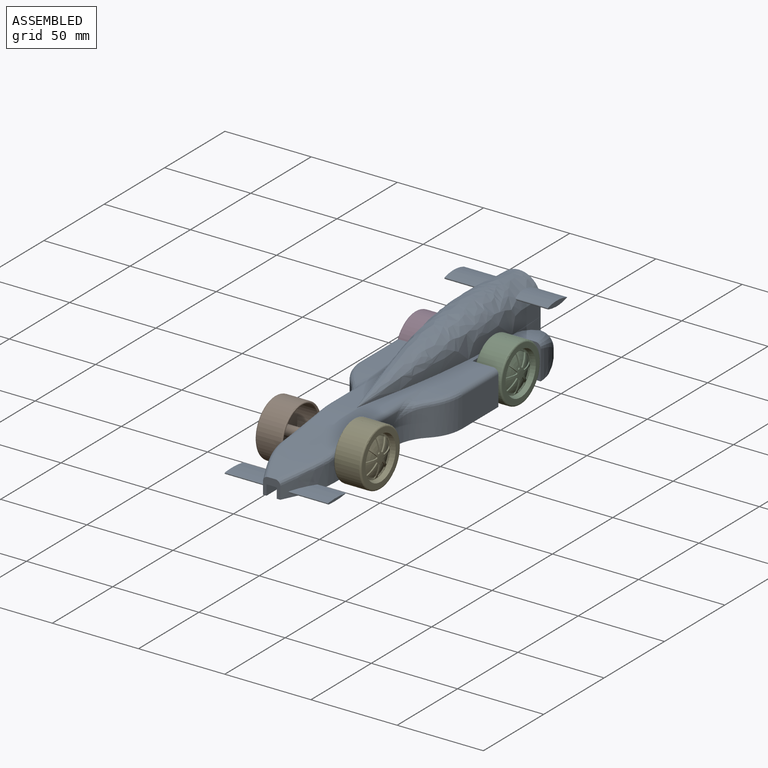
[diagram: assembled view]
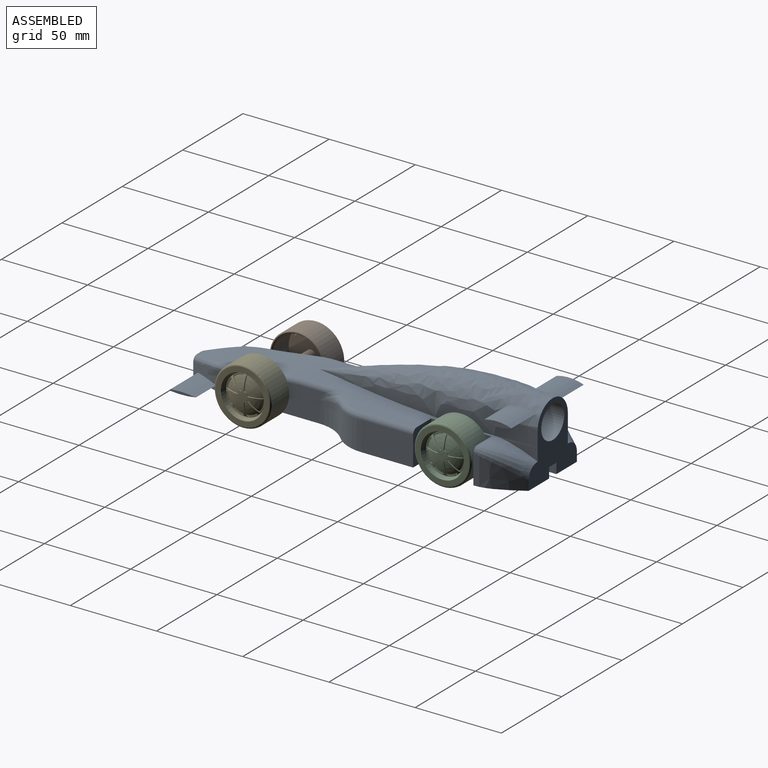
[diagram: assembled view, second angle]
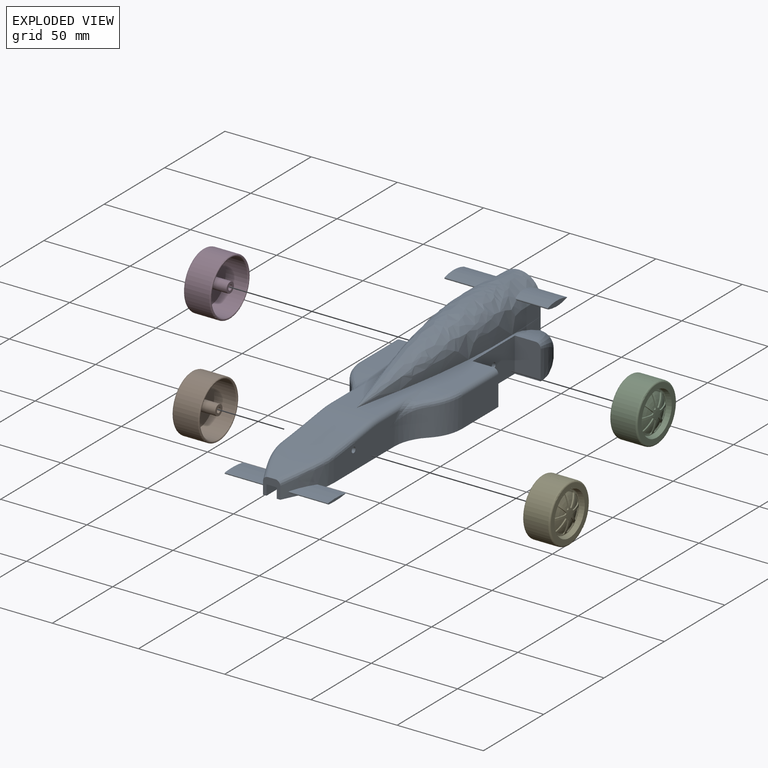
[diagram: exploded view]
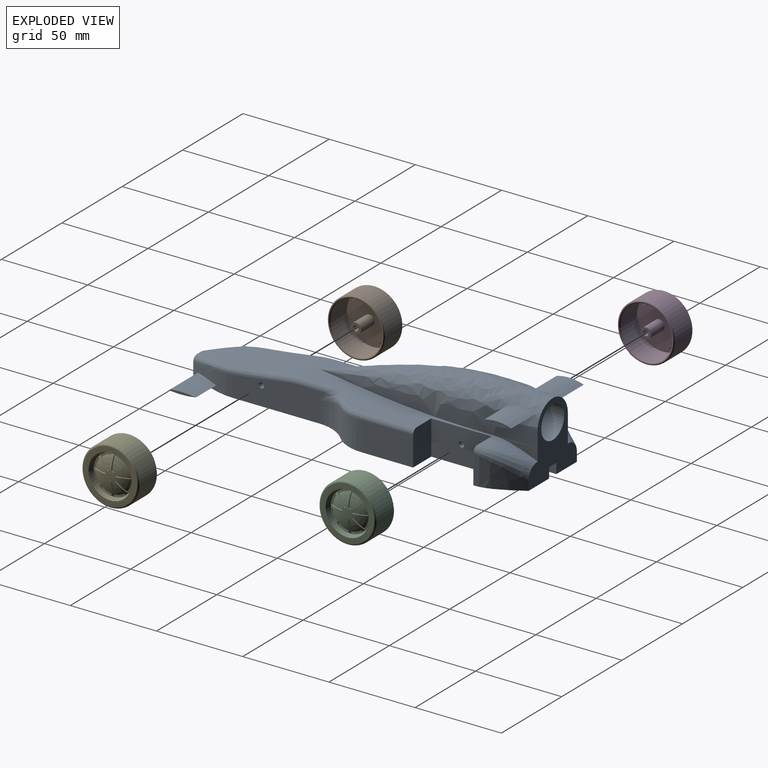
[diagram: exploded view, second angle]
ASSEMBLY  parts=5 mates=4
PART A: 87 faces, bbox 60.8x211.1x45.8 mm
  f0: bspline ~30x15mm, area 313.1mm2, adj f3,f5,f13,f41,f42,f83,f84,f85
  f1: bspline ~30x15mm, area 313.1mm2, adj f5,f11,f12,f47,f48,f79,f80,f81
  f2: bspline ~135x31.11mm, area 5800.7mm2, adj f4,f6,f14,f15,f69,f70,f71,f73
  f3: plane 205x27mm, normal (0,0,-1), area 3341.7mm2, adj f0,f4,f5,f10,f13,f21,f23,f26
  f4: plane 41.59x40.59mm, normal (0,1,0), area 803.1mm2, adj f2,f3,f11,f14,f15,f16,f21,f24
  f5: plane 10.81x10.81mm, normal (0,-1,0), area 60.6mm2, adj f0,f1,f3,f11,f36,f38,f39,f40
  f6: plane 111.01x54mm, normal (0,0,1), area 1779.8mm2, adj f2,f9,f10,f18,f20,f28,f30,f32
  f7: cylinder r=24.17mm len=17.5mm, axis (0,0,-1), area 273mm2, adj f8,f11,f12,f58
  f8: cylinder r=24.17mm len=17.5mm, axis (0,0,-1), area 323.2mm2, adj f7,f11,f31,f57
  f9: plane 35x20mm, normal (-1,0,0), area 692mm2, adj f6,f11,f19,f30,f78
  f10: plane 35x20mm, normal (1,0,0), area 692mm2, adj f3,f6,f23,f28,f78
  f11: plane 205x27mm, normal (0,0,-1), area 3341.7mm2, adj f1,f4,f5,f7,f8,f9,f12,f16
  f12: plane 54.07x17.63mm, normal (-1,0,0), area 763.6mm2, adj f1,f7,f11,f49,f50,f51,f52,f65
  f13: plane 53.44x17mm, normal (1,0,0), area 763.6mm2, adj f0,f3,f27,f43,f44,f45,f46,f68
  f14: extruded ~25x7.51mm, area 70.2mm2, adj f2,f4,f20,f59
  f15: extruded ~25x7.51mm, area 69.5mm2, adj f2,f4,f18,f61
  f16: bspline ~25x20mm, area 309.3mm2, adj f4,f11,f19,f61,f62
  f17: bspline ~25x15mm, area 118.1mm2, adj f18,f19,f62
  f18: extruded ~24.39x7.22mm, area 46.3mm2, adj f6,f15,f17,f61
  f19: plane 20.1x15.1mm, normal (0,-1,0), area 298.1mm2, adj f9,f11,f16,f17,f62
  f20: extruded ~24.4x7.23mm, area 46.4mm2, adj f6,f14,f22,f59
  f21: bspline ~25x20mm, area 309.3mm2, adj f3,f4,f23,f59,f60
  f22: bspline ~25x15mm, area 118.1mm2, adj f20,f23,f60
  f23: plane 20.1x15.1mm, normal (0,-1,0), area 298.1mm2, adj f3,f10,f21,f22,f60
  f24: cylinder r=9.5mm len=52mm, axis (0,1,0), area 3103.9mm2, adj f4,f25
  f25: plane 19x19mm, normal (0,1,0), area 283.5mm2, adj f24
  f26: cylinder r=24.17mm len=17.5mm, axis (0,0,-1), area 323.2mm2, adj f3,f27,f29,f54
  f27: cylinder r=24.17mm len=17.5mm, axis (0,0,-1), area 273mm2, adj f3,f13,f26,f55
  f28: plane 20x15mm, normal (0,1,0), area 298.1mm2, adj f3,f6,f10,f29,f53
  f29: plane 30x17mm, normal (1,0,0), area 510mm2, adj f3,f26,f28,f53
  f30: plane 20x15mm, normal (0,1,0), area 298.1mm2, adj f6,f9,f11,f31,f56
  f31: plane 30x17mm, normal (-1,0,0), area 510mm2, adj f8,f11,f30,f56
  f32: cylinder r=125mm len=18.4mm, axis (-1,0,0), area 148.7mm2, adj f6,f57,f58,f63
  f33: cylinder r=125mm len=18.4mm, axis (1,0,0), area 148.7mm2, adj f6,f54,f55,f66
  f34: plane 24x12.97mm, normal (0,-0.14,0.99), area 314.5mm2, adj f35,f37,f44,f50
  f35: cylinder r=60mm len=24mm, axis (1,0,0), area 204.3mm2, adj f6,f34,f45,f51
  f36: bspline ~30x30mm, area 311.6mm2, adj f5,f37,f41,f47
  f37: bspline ~27.9x24.13mm, area 579.4mm2, adj f34,f36,f42,f43,f48,f49
  f38: plane 205x6mm, normal (-1,0,0), area 1230mm2, adj f3,f4,f5,f40
  f39: plane 205x6mm, normal (1,0,0), area 1230mm2, adj f4,f5,f11,f40
  f40: plane 205x6mm, normal (0,0,-1), area 1230mm2, adj f4,f5,f38,f39
  f41: bspline ~30.02x13.66mm, area 116.6mm2, adj f0,f5,f36,f42
  f42: bspline ~10.45x4.23mm, area 30.2mm2, adj f0,f37,f41,f43
  f43: bspline ~54.83x11.22mm, area 86.3mm2, adj f13,f37,f42,f44
  f44: cylinder r=3mm len=13.4mm, axis (0,0.99,0.14), area 61.7mm2, adj f13,f34,f43,f45
  f45: torus R=57mm, axis (1,0,0), area 39.4mm2, adj f13,f35,f44,f46
  f46: cylinder r=3mm len=45.74mm, axis (0,1,0), area 117.1mm2, adj f6,f13,f45,f66,f67
  f47: bspline ~30.02x13.66mm, area 116.6mm2, adj f1,f5,f36,f48
  f48: bspline ~10.45x4.23mm, area 30.2mm2, adj f1,f37,f47,f49
  f49: bspline ~54.83x11.22mm, area 86.3mm2, adj f12,f37,f48,f50
  f50: cylinder r=3mm len=13.4mm, axis (0,-0.99,-0.14), area 61.7mm2, adj f12,f34,f49,f51
  f51: torus R=57mm, axis (1,0,0), area 39.4mm2, adj f12,f35,f50,f52
  f52: cylinder r=3mm len=45.74mm, axis (0,-1,0), area 117.1mm2, adj f6,f12,f51,f63,f64
  f53: cylinder r=3mm len=30mm, axis (0,-1,0), area 141.4mm2, adj f6,f28,f29,f54
  f54: bspline ~20.89x11.38mm, area 87.2mm2, adj f26,f33,f53,f55
  f55: bspline ~23.31x12.56mm, area 43.8mm2, adj f27,f33,f54,f67,f68
  f56: cylinder r=3mm len=30mm, axis (0,1,0), area 141.4mm2, adj f6,f30,f31,f57
  f57: bspline ~20.89x11.38mm, area 87.2mm2, adj f8,f32,f56,f58
  f58: bspline ~23.31x12.56mm, area 43.8mm2, adj f7,f32,f57,f64,f65
  f59: bspline ~9.3x9.24mm, area 37.1mm2, adj f4,f14,f20,f21,f60
  f60: bspline ~22.81x15mm, area 205mm2, adj f21,f22,f23,f59
  f61: bspline ~9.3x9.24mm, area 37mm2, adj f4,f15,f16,f18,f62
  f62: bspline ~22.81x15mm, area 205mm2, adj f16,f17,f19,f61
  f63: bspline ~19.88x6.01mm, area 32.3mm2, adj f32,f52,f64
  f64: bspline ~15.77x5.7mm, area 45.7mm2, adj f52,f58,f63,f65
  f65: bspline ~8.87x6.86mm, area 8.4mm2, adj f12,f58,f64
  f66: bspline ~28.18x8.28mm, area 32.3mm2, adj f33,f46,f67
  f67: bspline ~15.77x5.7mm, area 45.7mm2, adj f46,f55,f66,f68
  f68: bspline ~8.87x6.86mm, area 8.4mm2, adj f13,f55,f67
  f69: cylinder r=25.3mm len=19.6mm, axis (1,0,0), area 301.4mm2, adj f2,f70,f71,f72
  f70: cylinder r=25.3mm len=19.6mm, axis (1,0,0), area 306.3mm2, adj f2,f69,f71,f72
  f71: cylinder r=0.52mm len=18.95mm, axis (1,0,0), area 25mm2, adj f2,f69,f70,f72
  f72: plane 16x3mm, normal (1,0,0), area 34mm2, adj f69,f70,f71
  f73: cylinder r=0.52mm len=18.95mm, axis (-1,0,0), area 25mm2, adj f2,f74,f75,f76
  f74: cylinder r=25.3mm len=19.6mm, axis (-1,0,0), area 306.3mm2, adj f2,f73,f75,f76
  f75: cylinder r=25.3mm len=19.6mm, axis (-1,0,0), area 301.4mm2, adj f2,f73,f74,f76
  f76: plane 16x3mm, normal (-1,0,0), area 34mm2, adj f73,f74,f75
  f77: cylinder r=1.6mm len=30mm, axis (-1,0,0), area 301.6mm2, adj f12,f13
  f78: cylinder r=1.6mm len=30mm, axis (-1,0,0), area 301.6mm2, adj f9,f10
  f79: cylinder r=0.45mm len=22.81mm, axis (-1,0,0), area 29.9mm2, adj f1,f80,f81,f82
  f80: cylinder r=53.29mm len=22.81mm, axis (-1,0,0), area 289.9mm2, adj f1,f79,f81,f82
  f81: cylinder r=53.29mm len=22.81mm, axis (-1,0,0), area 289.9mm2, adj f1,f79,f80,f82
  f82: plane 15x1.5mm, normal (-1,0,0), area 16.6mm2, adj f79,f80,f81
  f83: cylinder r=0.45mm len=22.81mm, axis (1,0,0), area 29.9mm2, adj f0,f84,f85,f86
  f84: cylinder r=53.29mm len=22.81mm, axis (1,0,0), area 289.9mm2, adj f0,f83,f85,f86
  f85: cylinder r=53.29mm len=22.81mm, axis (1,0,0), area 289.9mm2, adj f0,f83,f84,f86
  f86: plane 15x1.5mm, normal (1,0,0), area 16.6mm2, adj f83,f84,f85
PART B: 90 faces, bbox 16.1x36.1x36.1 mm
  f0: cylinder r=16.5mm len=16.5mm, axis (1,0,0), area 362.7mm2, adj f1,f3,f86,f88
  f1: torus R=15.5mm, axis (1,0,0), area 159.3mm2, adj f0,f2,f7,f84,f85,f86,f87,f88
  f2: cylinder r=16.5mm len=33mm, axis (1,0,0), area 1088.4mm2, adj f1,f3,f84,f87
  f3: torus R=15.81mm, axis (1,0,0), area 215.3mm2, adj f0,f2,f8,f84,f85,f86,f87,f88
  f4: torus R=13.24mm, axis (1,0,0), area 10.3mm2, adj f7,f15
  f5: cylinder r=1.55mm len=13mm, axis (1,0,0), area 126.6mm2, adj f6,f13
  f6: cone r=1.55mm half-angle=51.1deg, axis (-1,0,0), area 9.7mm2, adj f5
  f7: plane 31x31mm, normal (1,0,0), area 203.7mm2, adj f1,f4
  f8: cylinder r=15.12mm len=30.24mm, axis (1,0,0), area 1282.5mm2, adj f3,f9
  f9: plane 30.24x30.24mm, normal (-1,0,0), area 177.4mm2, adj f8,f10
  f10: cone r=13.12mm half-angle=16.7deg, axis (1,0,0), area 249.3mm2, adj f9,f11
  f11: plane 24.44x24.44mm, normal (-1,0,0), area 439.9mm2, adj f10,f12
  f12: cylinder r=3.05mm len=11.19mm, axis (1,0,0), area 214.4mm2, adj f11,f13
  f13: plane 6.1x6.1mm, normal (-1,0,0), area 21.7mm2, adj f5,f12
  f14: plane 26.24x26.24mm, normal (1,0,0), area 49.9mm2, adj f15,f17
  f15: cylinder r=13.12mm len=26.24mm, axis (1,0,0), area 0.6mm2, adj f4,f14
  f16: plane 3x3mm, normal (1,0,0), area 7.1mm2, adj f61
  f17: cone r=12.5mm half-angle=16.7deg, axis (1,0,0), area 188.9mm2, adj f14,f18
  f18: torus R=11.31mm, axis (1,0,0), area 65.6mm2, adj f17,f24,f30,f36,f42,f48,f54,f60
  f19: cylinder r=0.75mm len=1.28mm, axis (1,0,0), area 1.3mm2, adj f20,f23,f61,f68
  f20: plane 7.03x3.12mm, normal (0,-1,0), area 4.9mm2, adj f19,f21,f61,f68
  f21: cylinder r=1mm len=1.16mm, axis (1,0,0), area 1.1mm2, adj f20,f24,f61,f68,f69
  f22: cylinder r=1mm len=1.52mm, axis (1,0,0), area 1.1mm2, adj f23,f24,f61,f68,f69
  f23: plane 5.1x5.1mm, normal (0,0.71,-0.71), area 4.9mm2, adj f19,f22,f61,f68
  f24: cylinder r=11.05mm len=4.66mm, axis (1,0,0), area 1.8mm2, adj f18,f21,f22,f69
  f25: cylinder r=1mm len=1.16mm, axis (1,0,0), area 1.1mm2, adj f26,f30,f61,f70,f71
  f26: plane 7.03x3.12mm, normal (0,0,-1), area 4.9mm2, adj f25,f27,f61,f71
  f27: cylinder r=0.75mm len=1.28mm, axis (1,0,0), area 1.3mm2, adj f26,f29,f61,f71
  f28: cylinder r=1mm len=1.52mm, axis (1,0,0), area 1.1mm2, adj f29,f30,f61,f70,f71
  f29: plane 5.1x5.1mm, normal (0,-0.71,0.71), area 4.9mm2, adj f27,f28,f61,f71
  f30: cylinder r=11.05mm len=4.66mm, axis (1,0,0), area 1.8mm2, adj f18,f25,f28,f70
  f31: plane 7.03x3.12mm, normal (0,0,1), area 4.9mm2, adj f32,f35,f61,f72
  f32: cylinder r=1mm len=1.16mm, axis (1,0,0), area 1.1mm2, adj f31,f36,f61,f72,f73
  f33: cylinder r=1mm len=1.52mm, axis (1,0,0), area 1.1mm2, adj f34,f36,f61,f72,f73
  f34: plane 5.1x5.1mm, normal (0,-0.71,-0.71), area 4.9mm2, adj f33,f35,f61,f72
  f35: cylinder r=0.75mm len=1.28mm, axis (1,0,0), area 1.3mm2, adj f31,f34,f61,f72
  f36: cylinder r=11.05mm len=4.66mm, axis (1,0,0), area 1.8mm2, adj f18,f32,f33,f73
  f37: plane 5.1x5.1mm, normal (0,0.71,0.71), area 4.9mm2, adj f38,f41,f61,f80
  f38: cylinder r=1mm len=1.52mm, axis (1,0,0), area 1.1mm2, adj f37,f42,f61,f80,f81
  f39: cylinder r=1mm len=1.16mm, axis (1,0,0), area 1.1mm2, adj f40,f42,f61,f80,f81
  f40: plane 7.03x3.12mm, normal (0,-1,0), area 4.9mm2, adj f39,f41,f61,f80
  f41: cylinder r=0.75mm len=1.28mm, axis (1,0,0), area 1.3mm2, adj f37,f40,f61,f80
  f42: cylinder r=11.05mm len=4.66mm, axis (1,0,0), area 1.8mm2, adj f18,f38,f39,f81
  f43: plane 7.03x3.12mm, normal (0,1,0), area 4.9mm2, adj f44,f47,f61,f74
  f44: cylinder r=1mm len=1.16mm, axis (1,0,0), area 1.1mm2, adj f43,f48,f61,f74,f75
  f45: cylinder r=1mm len=1.52mm, axis (1,0,0), area 1.1mm2, adj f46,f48,f61,f74,f75
  f46: plane 5.1x5.1mm, normal (0,-0.71,0.71), area 4.9mm2, adj f45,f47,f61,f74
  f47: cylinder r=0.75mm len=1.28mm, axis (1,0,0), area 1.3mm2, adj f43,f46,f61,f74
  f48: cylinder r=11.05mm len=4.66mm, axis (1,0,0), area 1.8mm2, adj f18,f44,f45,f75
  f49: plane 5.1x5.1mm, normal (0,0.71,-0.71), area 4.9mm2, adj f50,f53,f61,f76
  f50: cylinder r=1mm len=1.52mm, axis (1,0,0), area 1.1mm2, adj f49,f54,f61,f76,f77
  f51: cylinder r=1mm len=1.16mm, axis (1,0,0), area 1.1mm2, adj f52,f54,f61,f76,f77
  f52: plane 7.03x3.12mm, normal (0,0,1), area 4.9mm2, adj f51,f53,f61,f76
  f53: cylinder r=0.75mm len=1.28mm, axis (1,0,0), area 1.3mm2, adj f49,f52,f61,f76
  f54: cylinder r=11.05mm len=4.66mm, axis (1,0,0), area 1.8mm2, adj f18,f50,f51,f77
  f55: plane 7.03x3.12mm, normal (0,0,-1), area 4.9mm2, adj f56,f59,f61,f78
  f56: cylinder r=1mm len=1.16mm, axis (1,0,0), area 1.1mm2, adj f55,f60,f61,f78,f79
  f57: cylinder r=1mm len=1.52mm, axis (1,0,0), area 1.1mm2, adj f58,f60,f61,f78,f79
  f58: plane 5.1x5.1mm, normal (0,0.71,0.71), area 4.9mm2, adj f57,f59,f61,f78
  f59: cylinder r=0.75mm len=1.28mm, axis (1,0,0), area 1.3mm2, adj f55,f58,f61,f78
  f60: cylinder r=11.05mm len=4.66mm, axis (1,0,0), area 1.8mm2, adj f18,f56,f57,f79
  f61: torus R=1.5mm, axis (1,0,0), area 131.6mm2, adj f16,f18,f19,f20,f21,f22,f23,f25
  f62: plane 5.1x5.1mm, normal (0,-0.71,-0.71), area 4.9mm2, adj f61,f63,f66,f82
  f63: cylinder r=1mm len=1.52mm, axis (1,0,0), area 1.1mm2, adj f61,f62,f67,f82,f83
  f64: cylinder r=1mm len=1.16mm, axis (1,0,0), area 1.1mm2, adj f61,f65,f67,f82,f83
  f65: plane 7.03x3.12mm, normal (0,1,0), area 4.9mm2, adj f61,f64,f66,f82
  f66: cylinder r=0.75mm len=1.28mm, axis (1,0,0), area 1.3mm2, adj f61,f62,f65,f82
  f67: cylinder r=11.05mm len=4.66mm, axis (1,0,0), area 1.8mm2, adj f18,f63,f64,f83
  f68: torus R=1.5mm, axis (1,0,0), area 29.3mm2, adj f19,f20,f21,f22,f23,f69
  f69: plane 6.16x3.12mm, normal (1,0,0), area 4.5mm2, adj f21,f22,f24,f68
  f70: plane 6.16x3.12mm, normal (1,0,0), area 4.5mm2, adj f25,f28,f30,f71
  f71: torus R=1.5mm, axis (1,0,0), area 29.3mm2, adj f25,f26,f27,f28,f29,f70
  f72: torus R=1.5mm, axis (1,0,0), area 29.3mm2, adj f31,f32,f33,f34,f35,f73
  f73: plane 6.16x3.12mm, normal (1,0,0), area 4.5mm2, adj f32,f33,f36,f72
  f74: torus R=1.5mm, axis (1,0,0), area 29.3mm2, adj f43,f44,f45,f46,f47,f75
  f75: plane 6.16x3.12mm, normal (1,0,0), area 4.5mm2, adj f44,f45,f48,f74
  f76: torus R=1.5mm, axis (1,0,0), area 29.3mm2, adj f49,f50,f51,f52,f53,f77
  f77: plane 6.16x3.12mm, normal (1,0,0), area 4.5mm2, adj f50,f51,f54,f76
  f78: torus R=1.5mm, axis (1,0,0), area 29.3mm2, adj f55,f56,f57,f58,f59,f79
  f79: plane 6.16x3.12mm, normal (1,0,0), area 4.5mm2, adj f56,f57,f60,f78
  f80: torus R=1.5mm, axis (1,0,0), area 29.3mm2, adj f37,f38,f39,f40,f41,f81
  f81: plane 6.16x3.12mm, normal (1,0,0), area 4.5mm2, adj f38,f39,f42,f80
  f82: torus R=1.5mm, axis (1,0,0), area 29.3mm2, adj f62,f63,f64,f65,f66,f83
  f83: plane 6.16x3.12mm, normal (1,0,0), area 4.5mm2, adj f63,f64,f67,f82
  f84: plane 14.18x0.01mm, normal (0,1,0), area 0.1mm2, adj f1,f2,f3,f85
  f85: plane 14.18x0.01mm, normal (0,0,1), area 0.1mm2, adj f1,f3,f84,f86
  f86: plane 14.18x0.01mm, normal (0,-1,0), area 0.1mm2, adj f0,f1,f3,f85
  f87: plane 14.18x0.01mm, normal (0,0,1), area 0.1mm2, adj f1,f2,f3,f89
  f88: plane 14.18x0.01mm, normal (0,0,-1), area 0.1mm2, adj f0,f1,f3,f89
  f89: plane 14.18x0.01mm, normal (0,1,0), area 0.1mm2, adj f1,f3,f87,f88
PART C: same geometry as B
PART D: same geometry as B
PART E: same geometry as B
PLACE A t=(-35.02,65.28,-17.33)mm
PLACE B rot(axis=(0,1,0),180deg) t=(-65.71,-93.22,-34.83)mm
PLACE C t=(-4.33,22.78,-34.83)mm
PLACE D rot(axis=(0,1,0),180deg) t=(-65.71,22.78,-34.83)mm
PLACE E t=(-4.33,-93.22,-34.83)mm
MATE revolute C.f0 <-> A.f78  axis (-1,0,0) through (-20.02,22.78,-34.83)mm
MATE revolute D.f0 <-> A.f78  axis (1,0,0) through (-50.02,22.78,-34.83)mm
MATE revolute E.f0 <-> A.f77  axis (-1,0,0) through (-20.02,-93.22,-34.83)mm
MATE revolute B.f0 <-> A.f77  axis (1,0,0) through (-50.02,-93.22,-34.83)mm
